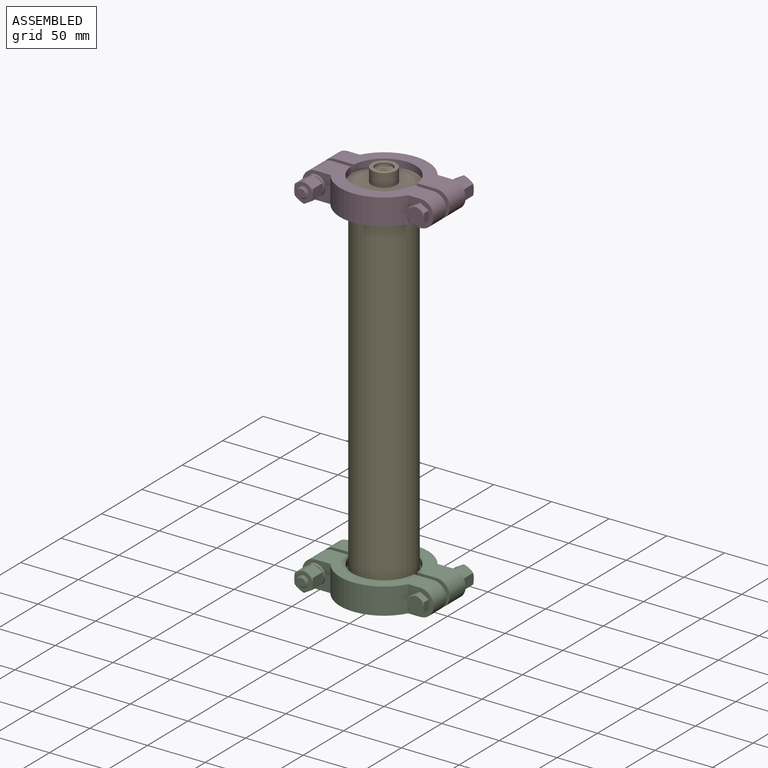
[diagram: assembled view]
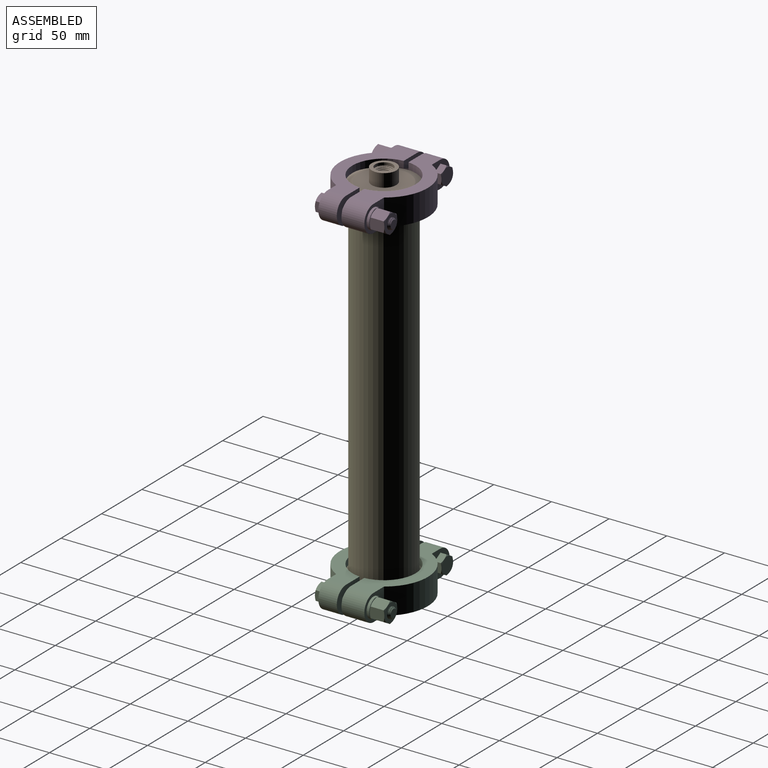
[diagram: assembled view, second angle]
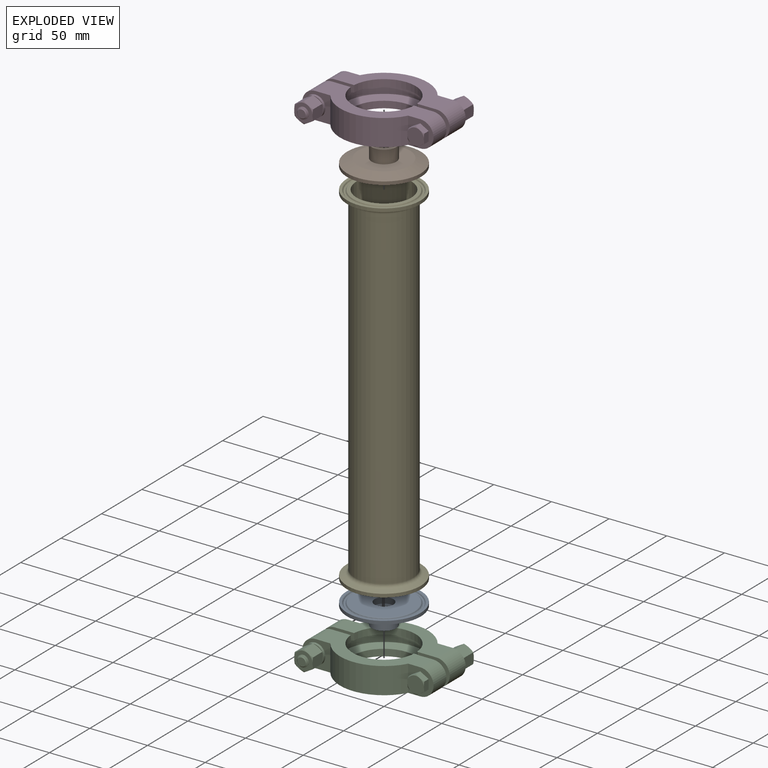
[diagram: exploded view]
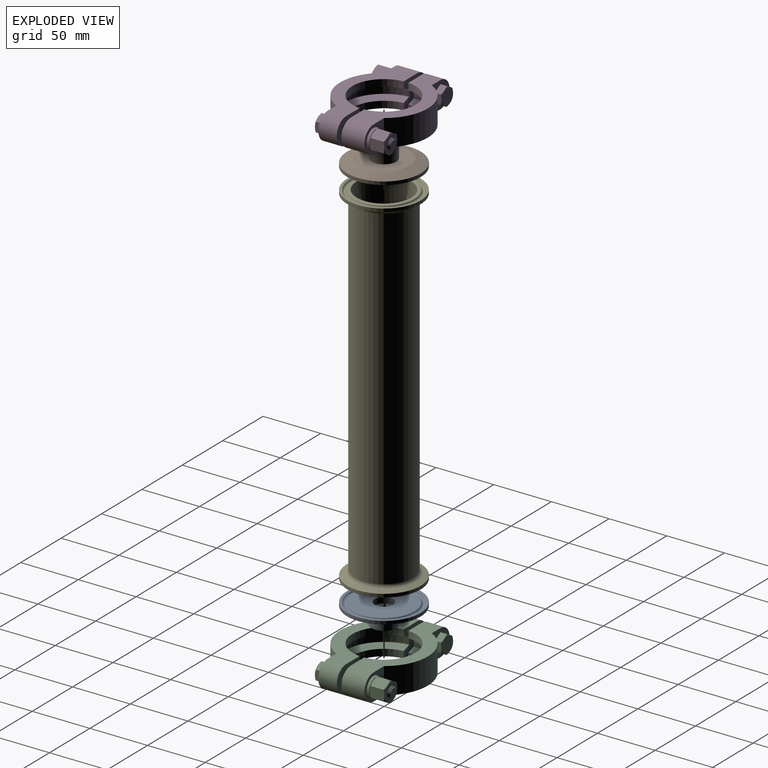
[diagram: exploded view, second angle]
ASSEMBLY  parts=5 mates=4
PART A: 22 faces, bbox 65.3x65.3x17.8 mm
  f0: plane 44.65x44.65mm, normal (0,0,-1), area 1207.9mm2, adj f1,f11
  f1: cone r=22.32mm half-angle=70deg, axis (0,0,1), area 1747.5mm2, adj f0,f2
  f2: cylinder r=31.95mm len=63.91mm, axis (0,0,1), area 571.1mm2, adj f1,f3
  f3: plane 63.91x63.91mm, normal (0,0,1), area 350.1mm2, adj f2,f4
  f4: torus R=30.16mm, axis (0,0,1), area 172.1mm2, adj f3,f5
  f5: cone r=29.43mm half-angle=23deg, axis (0,0,1), area 78.8mm2, adj f4,f6
  f6: torus R=28.17mm, axis (0,0,1), area 494.2mm2, adj f5,f7
  f7: cone r=27.07mm half-angle=23deg, axis (0,0,-1), area 72.4mm2, adj f6,f8
  f8: torus R=26.18mm, axis (0,0,1), area 153.8mm2, adj f7,f9
  f9: plane 52.36x52.36mm, normal (0,0,1), area 1945.4mm2, adj f8,f10
  f10: cylinder r=8.13mm len=16.26mm, axis (0,0,1), area 259.4mm2, adj f9,f12
  f11: cylinder r=10.67mm len=21.34mm, axis (0,0,-1), area 766.1mm2, adj f0,f13
  f12: plane 16.26x16.26mm, normal (0,0,1), area 27.8mm2, adj f10,f14
  f13: plane 21.34x21.34mm, normal (0,0,-1), area 177.8mm2, adj f11,f20
  f14: cone r=7.56mm half-angle=45deg, axis (0,0,1), area 74mm2, adj f12,f16,f17,f18,f19
  f15: plane 0.94x0.63mm, normal (1,0,0), area 0.3mm2, adj f16,f18,f19,f21
  f16: cone r=6.86mm half-angle=1.8deg, axis (0,0,1), area 49.1mm2, adj f14,f15,f17,f19,f21
  f17: bspline ~14.13x14.09mm, area 259.9mm2, adj f14,f16,f18,f21
  f18: bspline ~12.16x12.11mm, area 38.4mm2, adj f14,f15,f17,f19,f21
  f19: bspline ~14.31x14.29mm, area 260.3mm2, adj f14,f15,f16,f18
  f20: cylinder r=7.56mm len=15.13mm, axis (0,0,1), area 118.5mm2, adj f13,f21
  f21: plane 15.13x15.13mm, normal (0,0,-1), area 54.2mm2, adj f15,f16,f17,f18,f20
PART B: same geometry as A
PART C: 138 faces, bbox 111.9x80.3x23.6 mm
  f0: plane 17.27x17.27mm, normal (0,-1,0), area 36.4mm2, adj f1,f26,f27,f28,f29,f30,f31
  f1: cylinder r=8.64mm len=17.27mm, axis (0,-1,0), area 124mm2, adj f0,f109
  f2: plane 10.16x10.16mm, normal (0,-1,0), area 9.8mm2, adj f3,f75
  f3: cylinder r=4.76mm len=34.53mm, axis (0,1,0), area 978.3mm2, adj f2,f8,f10,f12,f13
  f4: cylinder r=4.76mm len=9.53mm, axis (0,1,0), area 5.2mm2, adj f5,f10,f12,f24
  f5: cylinder r=4.76mm len=9.53mm, axis (0,1,0), area 5.9mm2, adj f4,f6,f10,f12
  f6: cylinder r=4.76mm len=9.53mm, axis (0,1,0), area 5.9mm2, adj f5,f7,f10,f12
  f7: cylinder r=4.76mm len=9.53mm, axis (0,1,0), area 5.9mm2, adj f6,f8,f10,f12
  f8: cylinder r=4.76mm len=9.53mm, axis (0,1,0), area 5.9mm2, adj f3,f7,f10,f12
  f9: cylinder r=4.76mm len=9.53mm, axis (0,1,0), area 4.1mm2, adj f10,f12,f14,f15,f23
  f10: bspline ~25.25x9.7mm, area 472.5mm2, adj f3,f4,f5,f6,f7,f8,f9,f11
  f11: bspline ~25x7.46mm, area 71.7mm2, adj f10,f12,f13,f14
  f12: bspline ~25.45x9.7mm, area 490.5mm2, adj f3,f4,f5,f6,f7,f8,f9,f11
  f13: plane 1.39x1.03mm, normal (0,0,1), area 0.8mm2, adj f3,f10,f11,f12
  f14: cone r=3.56mm half-angle=45deg, axis (0,1,0), area 24.4mm2, adj f9,f10,f11,f12,f15,f16
  f15: cone r=3.56mm half-angle=45deg, axis (0,1,0), area 0mm2, adj f9,f12,f14
  f16: plane 7.12x7.12mm, normal (0,-1,0), area 39.8mm2, adj f14
  f17: plane 13.46x8.69mm, normal (0.5,0,0.87), area 111.9mm2, adj f18,f22,f27,f31,f32,f33
  f18: plane 13.46x8.69mm, normal (-0.5,0,0.87), area 111.9mm2, adj f17,f19,f30,f31,f32,f37
  f19: plane 13.46x9.93mm, normal (-1,0,0), area 111.9mm2, adj f18,f20,f29,f30,f36,f37
  f20: plane 13.46x8.69mm, normal (-0.5,0,-0.87), area 111.9mm2, adj f19,f21,f28,f29,f35,f36
  f21: plane 13.46x8.69mm, normal (0.5,0,-0.87), area 111.9mm2, adj f20,f22,f26,f28,f34,f35
  f22: plane 13.46x9.93mm, normal (1,0,0), area 111.9mm2, adj f17,f21,f26,f27,f33,f34
  f23: plane 15.88x15.88mm, normal (0,-1,0), area 126.7mm2, adj f9,f25,f32,f33,f34,f35,f36,f37
  f24: plane 9.65x9.65mm, normal (0,1,0), area 1.9mm2, adj f4,f25,f136
  f25: cylinder r=4.76mm len=12.7mm, axis (0,1,0), area 331.8mm2, adj f10,f12,f23,f24
  f26: cone r=7.94mm half-angle=60deg, axis (0,-1,0), area 6.2mm2, adj f0,f21,f22
  f27: cone r=7.94mm half-angle=60deg, axis (0,-1,0), area 6.2mm2, adj f0,f17,f22
  f28: cone r=7.94mm half-angle=60deg, axis (0,-1,0), area 6.2mm2, adj f0,f20,f21
  f29: cone r=7.94mm half-angle=60deg, axis (0,-1,0), area 6.2mm2, adj f0,f19,f20
  f30: cone r=7.94mm half-angle=60deg, axis (0,-1,0), area 6.2mm2, adj f0,f18,f19
  f31: cone r=7.94mm half-angle=60deg, axis (0,-1,0), area 6.2mm2, adj f0,f17,f18
  f32: cone r=7.94mm half-angle=60deg, axis (0,1,0), area 6.2mm2, adj f17,f18,f23
  f33: cone r=7.94mm half-angle=60deg, axis (0,1,0), area 6.2mm2, adj f17,f22,f23
  f34: cone r=7.94mm half-angle=60deg, axis (0,1,0), area 6.2mm2, adj f21,f22,f23
  f35: cone r=7.94mm half-angle=60deg, axis (0,1,0), area 6.2mm2, adj f20,f21,f23
  f36: cone r=7.94mm half-angle=60deg, axis (0,1,0), area 6.2mm2, adj f19,f20,f23
  f37: cone r=7.94mm half-angle=60deg, axis (0,1,0), area 6.2mm2, adj f18,f19,f23
  f38: plane 22.86x22mm, normal (0,1,0), area 270.1mm2, adj f64,f65,f71,f74,f130,f131,f132,f133
  f39: cylinder r=4.76mm len=12.7mm, axis (0,-1,0), area 331.8mm2, adj f40,f47,f87,f89
  f40: plane 9.65x9.65mm, normal (0,-1,0), area 1.9mm2, adj f39,f62,f81
  f41: plane 13.46x8.69mm, normal (-0.5,0,0.87), area 111.9mm2, adj f42,f46,f49,f53,f54,f55
  f42: plane 13.46x8.69mm, normal (0.5,0,0.87), area 111.9mm2, adj f41,f43,f52,f53,f54,f59
  f43: plane 13.46x9.93mm, normal (1,0,0), area 111.9mm2, adj f42,f44,f51,f52,f58,f59
  f44: plane 13.46x8.69mm, normal (0.5,0,-0.87), area 111.9mm2, adj f43,f45,f50,f51,f57,f58
  f45: plane 13.46x8.69mm, normal (-0.5,0,-0.87), area 111.9mm2, adj f44,f46,f48,f50,f56,f57
  f46: plane 13.46x9.93mm, normal (-1,0,0), area 111.9mm2, adj f41,f45,f48,f49,f55,f56
  f47: plane 15.88x15.88mm, normal (0,1,0), area 126.7mm2, adj f39,f54,f55,f56,f57,f58,f59,f79
  f48: cone r=7.94mm half-angle=60deg, axis (0,1,0), area 6.2mm2, adj f45,f46,f63
  f49: cone r=7.94mm half-angle=60deg, axis (0,1,0), area 6.2mm2, adj f41,f46,f63
  f50: cone r=7.94mm half-angle=60deg, axis (0,1,0), area 6.2mm2, adj f44,f45,f63
  f51: cone r=7.94mm half-angle=60deg, axis (0,1,0), area 6.2mm2, adj f43,f44,f63
  f52: cone r=7.94mm half-angle=60deg, axis (0,1,0), area 6.2mm2, adj f42,f43,f63
  f53: cone r=7.94mm half-angle=60deg, axis (0,1,0), area 6.2mm2, adj f41,f42,f63
  f54: cone r=7.94mm half-angle=60deg, axis (0,-1,0), area 6.2mm2, adj f41,f42,f47
  f55: cone r=7.94mm half-angle=60deg, axis (0,-1,0), area 6.2mm2, adj f41,f46,f47
  f56: cone r=7.94mm half-angle=60deg, axis (0,-1,0), area 6.2mm2, adj f45,f46,f47
  f57: cone r=7.94mm half-angle=60deg, axis (0,-1,0), area 6.2mm2, adj f44,f45,f47
  f58: cone r=7.94mm half-angle=60deg, axis (0,-1,0), area 6.2mm2, adj f43,f44,f47
  f59: cone r=7.94mm half-angle=60deg, axis (0,-1,0), area 6.2mm2, adj f42,f43,f47
  f60: plane 10.16x10.16mm, normal (0,-1,0), area 7.9mm2, adj f62,f77
  f61: cylinder r=8.64mm len=17.27mm, axis (0,1,0), area 124mm2, adj f63,f78
  f62: cylinder r=4.83mm len=9.65mm, axis (0,1,0), area 69.3mm2, adj f40,f60
  f63: plane 17.27x17.27mm, normal (0,1,0), area 36.4mm2, adj f48,f49,f50,f51,f52,f53,f61
  f64: cylinder r=38.1mm len=64.78mm, axis (0,0,-1), area 1775mm2, adj f38,f65,f71,f78
  f65: plane 88.27x36.07mm, normal (0,0,1), area 1345.5mm2, adj f38,f64,f66,f72,f73,f74,f76,f78
  f66: cylinder r=27.43mm len=54.71mm, axis (0,0,-1), area 481.2mm2, adj f65,f67,f72,f73
  f67: cone r=27.43mm half-angle=70deg, axis (0,0,-1), area 647.1mm2, adj f66,f68,f72,f73
  f68: cylinder r=34.01mm len=67.9mm, axis (0,0,-1), area 652.7mm2, adj f67,f69,f72,f73
  f69: cone r=34.01mm half-angle=70deg, axis (0,0,1), area 647.1mm2, adj f68,f70,f72,f73
  f70: cylinder r=27.43mm len=54.71mm, axis (0,0,-1), area 481.2mm2, adj f69,f71,f72,f73
  f71: plane 88.27x36.07mm, normal (0,0,-1), area 1345.5mm2, adj f38,f64,f70,f72,f73,f74,f76,f78
  f72: plane 28.25x22.91mm, normal (0,-1,0), area 450mm2, adj f65,f66,f67,f68,f69,f70,f71,f76
  f73: plane 28.25x22.91mm, normal (0,-1,0), area 450mm2, adj f65,f66,f67,f68,f69,f70,f71,f74
  f74: cylinder r=11.43mm len=22.86mm, axis (0,-1,0), area 574.6mm2, adj f38,f65,f71,f73
  f75: cylinder r=5.08mm len=16mm, axis (0,-1,0), area 510.8mm2, adj f2,f73
  f76: cylinder r=11.43mm len=22.86mm, axis (0,-1,0), area 711.4mm2, adj f65,f71,f72,f78
  f77: cylinder r=5.08mm len=19.81mm, axis (0,-1,0), area 632.4mm2, adj f60,f72
  f78: plane 24.35x22.86mm, normal (0,1,0), area 266.2mm2, adj f61,f64,f65,f71,f76
  f79: cylinder r=4.76mm len=9.53mm, axis (0,-1,0), area 4.1mm2, adj f47,f87,f89,f91,f92
  f80: plane 10.16x10.16mm, normal (0,1,0), area 9.8mm2, adj f86,f106
  f81: cylinder r=4.76mm len=9.53mm, axis (0,-1,0), area 5.2mm2, adj f40,f82,f87,f89
  f82: cylinder r=4.76mm len=9.53mm, axis (0,-1,0), area 5.9mm2, adj f81,f83,f87,f89
  f83: cylinder r=4.76mm len=9.53mm, axis (0,-1,0), area 5.9mm2, adj f82,f84,f87,f89
  f84: cylinder r=4.76mm len=9.53mm, axis (0,-1,0), area 5.9mm2, adj f83,f85,f87,f89
  f85: cylinder r=4.76mm len=9.53mm, axis (0,-1,0), area 5.9mm2, adj f84,f86,f87,f89
  f86: cylinder r=4.76mm len=34.53mm, axis (0,-1,0), area 978.3mm2, adj f80,f85,f87,f89,f90
  f87: bspline ~25.25x9.7mm, area 472.5mm2, adj f39,f79,f81,f82,f83,f84,f85,f86
  f88: bspline ~25x7.46mm, area 71.7mm2, adj f87,f89,f90,f91
  f89: bspline ~25.45x9.7mm, area 490.5mm2, adj f39,f79,f81,f82,f83,f84,f85,f86
  f90: plane 1.39x1.03mm, normal (0,0,1), area 0.8mm2, adj f86,f87,f88,f89
  f91: cone r=3.56mm half-angle=45deg, axis (0,-1,0), area 24.4mm2, adj f79,f87,f88,f89,f92,f93
  f92: cone r=3.56mm half-angle=45deg, axis (0,-1,0), area 0mm2, adj f79,f89,f91
  f93: plane 7.12x7.12mm, normal (0,1,0), area 39.8mm2, adj f91
  f94: plane 22.86x22mm, normal (0,-1,0), area 270.1mm2, adj f95,f96,f102,f105,f117,f118,f119,f120
  f95: cylinder r=38.1mm len=64.78mm, axis (0,0,-1), area 1775mm2, adj f94,f96,f102,f109
  f96: plane 88.27x36.07mm, normal (0,0,1), area 1345.5mm2, adj f94,f95,f97,f103,f104,f105,f107,f109
  f97: cylinder r=27.43mm len=54.71mm, axis (0,0,-1), area 481.2mm2, adj f96,f98,f103,f104
  f98: cone r=27.43mm half-angle=70deg, axis (0,0,-1), area 647.1mm2, adj f97,f99,f103,f104
  f99: cylinder r=34.01mm len=67.9mm, axis (0,0,-1), area 652.7mm2, adj f98,f100,f103,f104
  f100: cone r=34.01mm half-angle=70deg, axis (0,0,1), area 647.1mm2, adj f99,f101,f103,f104
  f101: cylinder r=27.43mm len=54.71mm, axis (0,0,-1), area 481.2mm2, adj f100,f102,f103,f104
  f102: plane 88.27x36.07mm, normal (0,0,-1), area 1345.5mm2, adj f94,f95,f101,f103,f104,f105,f107,f109
  f103: plane 28.25x22.91mm, normal (0,1,0), area 450mm2, adj f96,f97,f98,f99,f100,f101,f102,f107
  f104: plane 28.25x22.91mm, normal (0,1,0), area 450mm2, adj f96,f97,f98,f99,f100,f101,f102,f105
  f105: cylinder r=11.43mm len=22.86mm, axis (0,1,0), area 574.6mm2, adj f94,f96,f102,f104
  f106: cylinder r=5.08mm len=16mm, axis (0,1,0), area 510.8mm2, adj f80,f104
  f107: cylinder r=11.43mm len=22.86mm, axis (0,1,0), area 711.4mm2, adj f96,f102,f103,f109
  f108: cylinder r=5.08mm len=19.81mm, axis (0,1,0), area 632.4mm2, adj f103,f137
  f109: plane 24.35x22.86mm, normal (0,-1,0), area 266.2mm2, adj f1,f95,f96,f102,f107
  f110: plane 14.29x14.29mm, normal (0,-1,0), area 160.3mm2, adj f111,f112,f113,f114,f115,f116
  f111: cone r=7.14mm half-angle=60deg, axis (0,1,0), area 5mm2, adj f110,f121,f122
  f112: cone r=7.14mm half-angle=60deg, axis (0,1,0), area 5mm2, adj f110,f120,f121
  f113: cone r=7.14mm half-angle=60deg, axis (0,1,0), area 5mm2, adj f110,f119,f120
  f114: cone r=7.14mm half-angle=60deg, axis (0,1,0), area 5mm2, adj f110,f118,f119
  f115: cone r=7.14mm half-angle=60deg, axis (0,1,0), area 5mm2, adj f110,f117,f122
  f116: cone r=7.14mm half-angle=60deg, axis (0,1,0), area 5mm2, adj f110,f117,f118
  f117: plane 8.94x6.64mm, normal (1,0,0), area 47.3mm2, adj f94,f115,f116,f118,f122
  f118: plane 7.82x6.64mm, normal (0.5,0,-0.87), area 47.3mm2, adj f94,f114,f116,f117,f119
  f119: plane 7.82x6.64mm, normal (-0.5,0,-0.87), area 47.3mm2, adj f94,f113,f114,f118,f120
  f120: plane 8.94x6.64mm, normal (-1,0,0), area 47.3mm2, adj f94,f112,f113,f119,f121
  f121: plane 7.82x6.64mm, normal (-0.5,0,0.87), area 47.3mm2, adj f94,f111,f112,f120,f122
  f122: plane 7.82x6.64mm, normal (0.5,0,0.87), area 47.3mm2, adj f94,f111,f115,f117,f121
  f123: plane 14.29x14.29mm, normal (0,1,0), area 160.3mm2, adj f124,f125,f126,f127,f128,f129
  f124: cone r=7.14mm half-angle=60deg, axis (0,-1,0), area 5mm2, adj f123,f134,f135
  f125: cone r=7.14mm half-angle=60deg, axis (0,-1,0), area 5mm2, adj f123,f133,f134
  f126: cone r=7.14mm half-angle=60deg, axis (0,-1,0), area 5mm2, adj f123,f132,f133
  f127: cone r=7.14mm half-angle=60deg, axis (0,-1,0), area 5mm2, adj f123,f131,f132
  f128: cone r=7.14mm half-angle=60deg, axis (0,-1,0), area 5mm2, adj f123,f130,f135
  f129: cone r=7.14mm half-angle=60deg, axis (0,-1,0), area 5mm2, adj f123,f130,f131
  f130: plane 8.94x6.64mm, normal (-1,0,0), area 47.3mm2, adj f38,f128,f129,f131,f135
  f131: plane 7.82x6.64mm, normal (-0.5,0,-0.87), area 47.3mm2, adj f38,f127,f129,f130,f132
  f132: plane 7.82x6.64mm, normal (0.5,0,-0.87), area 47.3mm2, adj f38,f126,f127,f131,f133
  f133: plane 8.94x6.64mm, normal (1,0,0), area 47.3mm2, adj f38,f125,f126,f132,f134
  f134: plane 7.82x6.64mm, normal (0.5,0,0.87), area 47.3mm2, adj f38,f124,f125,f133,f135
  f135: plane 7.82x6.64mm, normal (-0.5,0,0.87), area 47.3mm2, adj f38,f124,f128,f130,f134
  f136: cylinder r=4.83mm len=9.65mm, axis (0,-1,0), area 69.3mm2, adj f24,f137
  f137: plane 10.16x10.16mm, normal (0,1,0), area 7.9mm2, adj f108,f136
PART D: same geometry as C
PART E: 22 faces, bbox 66.5x66.5x304.8 mm
  f0: plane 63.91x63.91mm, normal (0,0,1), area 350.1mm2, adj f1,f21
  f1: torus R=30.16mm, axis (0,0,1), area 172.1mm2, adj f0,f2
  f2: cone r=29.43mm half-angle=23deg, axis (0,0,1), area 78.8mm2, adj f1,f3
  f3: torus R=28.17mm, axis (0,0,1), area 494.2mm2, adj f2,f4
  f4: cone r=27.07mm half-angle=23deg, axis (0,0,-1), area 72.4mm2, adj f3,f5
  f5: torus R=26.18mm, axis (0,0,1), area 153.8mm2, adj f4,f6
  f6: plane 52.36x52.36mm, normal (0,0,1), area 381mm2, adj f5,f7
  f7: cylinder r=23.75mm len=304.8mm, axis (0,0,1), area 45482.1mm2, adj f6,f8
  f8: plane 52.36x52.36mm, normal (0,0,-1), area 381mm2, adj f7,f9
  f9: torus R=26.18mm, axis (0,0,1), area 153.8mm2, adj f8,f10
  f10: cone r=26.9mm half-angle=23deg, axis (0,0,1), area 72.4mm2, adj f9,f11
  f11: torus R=28.17mm, axis (0,0,1), area 494.2mm2, adj f10,f12
  f12: cone r=29.27mm half-angle=23deg, axis (0,0,-1), area 78.8mm2, adj f11,f13
  f13: torus R=30.16mm, axis (0,0,1), area 172.1mm2, adj f12,f14
  f14: plane 63.91x63.91mm, normal (0,0,-1), area 350.1mm2, adj f13,f15
  f15: cylinder r=31.95mm len=63.91mm, axis (0,0,1), area 571.1mm2, adj f14,f16
  f16: cone r=31.95mm half-angle=70deg, axis (0,0,-1), area 887.1mm2, adj f15,f17
  f17: torus R=28.57mm, axis (0,0,1), area 636.9mm2, adj f16,f18
  f18: cylinder r=25.4mm len=289.89mm, axis (0,0,1), area 46265mm2, adj f17,f19
  f19: torus R=28.57mm, axis (0,0,1), area 636.9mm2, adj f18,f20
  f20: cone r=27.49mm half-angle=70deg, axis (0,0,1), area 887.1mm2, adj f19,f21
  f21: cylinder r=31.95mm len=63.91mm, axis (0,0,1), area 571.1mm2, adj f0,f20
PLACE A t=(0,0,-304.8)mm
PLACE B rot(axis=(0,1,0),180deg) t=(0,0,0)mm
PLACE C t=(0,0,-304.8)mm
PLACE D at identity
PLACE E at identity
MATE fastened B.f1 <-> E.f1  axis (0,0,-1) through (0,0,0)mm
MATE fastened A.f1 <-> E.f1  axis (0,0,1) through (0,0,-304.8)mm
MATE fastened D.f64 <-> E.f1  axis (0,0,-1) through (0,0,0)mm
MATE fastened C.f64 <-> E.f1  axis (0,0,-1) through (0,0,-304.8)mm
